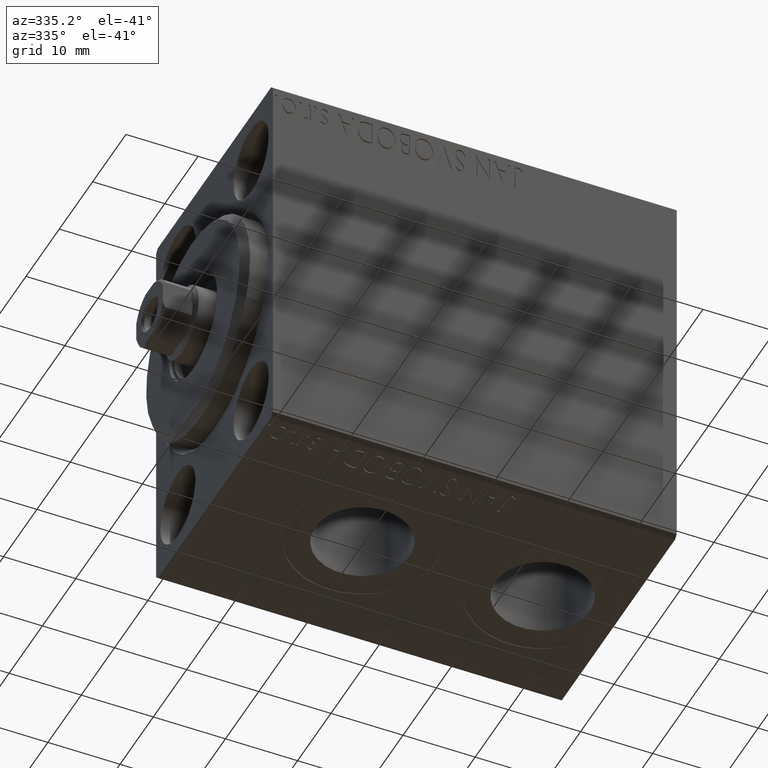
[diagram: clean part render]
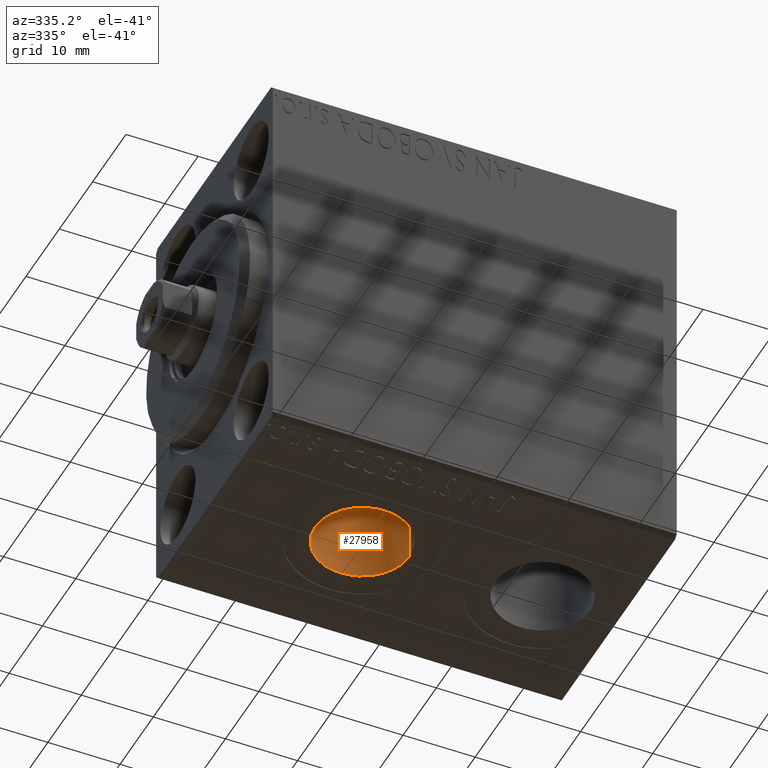
[diagram: same view with one face highlighted and labeled with its STEP entity id]
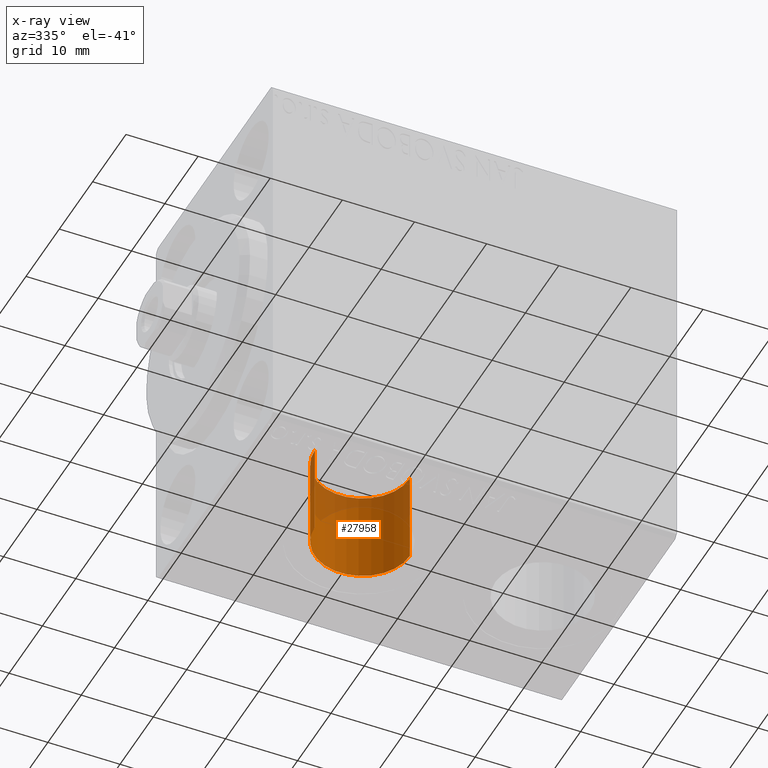
[diagram: x-ray of the same camera — body ghosted, the highlighted face saturated]
A machine part, auxiliary view. The second image highlights one B-rep face of the part: STEP entity #27958.
The next image is the same camera in x-ray: the body ghosted, the highlighted face saturated — about 26% of this face is hidden behind the body in this view.
In plain terms, the highlighted cylindrical surface (partial cylindrical patch) has radius 6.58 mm, axis along (-0, -0, -1).
Its self-contained STEP definition (entity closure, byte-faithful):
#293 = AXIS2_PLACEMENT_3D ( 'NONE', #1376, #31899, #14532 ) ;
#1169 = EDGE_CURVE ( 'NONE', #30750, #28812, #36252, .T. ) ;
#1376 = CARTESIAN_POINT ( 'NONE',  ( 20.50000000000000355, -2.726986211408916281E-15, -14.50000000000000355 ) ) ;
#2570 = VERTEX_POINT ( 'NONE', #6301 ) ;
#3170 = VECTOR ( 'NONE', #26231, 1000.000000000000000 ) ;
#4325 = CARTESIAN_POINT ( 'NONE',  ( 13.92000000000000171, -2.726986211408916281E-15, -27.40000000000000568 ) ) ;
#5148 = DIRECTION ( 'NONE',  ( 0.000000000000000000, 0.000000000000000000, -1.000000000000000000 ) ) ;
#6301 = CARTESIAN_POINT ( 'NONE',  ( 13.92000000000000171, -2.726986211408916281E-15, -14.50000000000000355 ) ) ;
#7382 = CIRCLE ( 'NONE', #293, 6.580000000000002736 ) ;
#9092 = CARTESIAN_POINT ( 'NONE',  ( 27.08000000000000540, -1.921168617569958028E-15, -27.40000000000000568 ) ) ;
#9183 = CARTESIAN_POINT ( 'NONE',  ( 20.50000000000000355, -2.726986211408916281E-15, -14.50000000000000355 ) ) ;
#13031 = CARTESIAN_POINT ( 'NONE',  ( 27.08000000000000540, -1.921168617569958028E-15, -14.50000000000000355 ) ) ;
#14532 = DIRECTION ( 'NONE',  ( -1.000000000000000000, 0.000000000000000000, 0.000000000000000000 ) ) ;
#15109 = ORIENTED_EDGE ( 'NONE', *, *, #23687, .T. ) ;
#16440 = ORIENTED_EDGE ( 'NONE', *, *, #1169, .T. ) ;
#17049 = AXIS2_PLACEMENT_3D ( 'NONE', #21870, #5148, #29643 ) ;
#17920 = EDGE_CURVE ( 'NONE', #25632, #28812, #30620, .T. ) ;
#21870 = CARTESIAN_POINT ( 'NONE',  ( 20.50000000000000355, -2.726986211408916281E-15, -27.40000000000000568 ) ) ;
#22492 = CARTESIAN_POINT ( 'NONE',  ( 27.08000000000000540, -1.921168617569958028E-15, -14.50000000000000355 ) ) ;
#23511 = ORIENTED_EDGE ( 'NONE', *, *, #17920, .F. ) ;
#23687 = EDGE_CURVE ( 'NONE', #2570, #30750, #43593, .T. ) ;
#25453 = DIRECTION ( 'NONE',  ( -1.000000000000000000, 0.000000000000000000, 0.000000000000000000 ) ) ;
#25632 = VERTEX_POINT ( 'NONE', #22492 ) ;
#26231 = DIRECTION ( 'NONE',  ( -0.000000000000000000, -0.000000000000000000, -1.000000000000000000 ) ) ;
#26835 = DIRECTION ( 'NONE',  ( -0.000000000000000000, -0.000000000000000000, -1.000000000000000000 ) ) ;
#27958 = ADVANCED_FACE ( 'NONE', ( #42376 ), #35938, .F. ) ;
#28369 = EDGE_LOOP ( 'NONE', ( #23511, #30418, #15109, #16440 ) ) ;
#28812 = VERTEX_POINT ( 'NONE', #9092 ) ;
#29298 = AXIS2_PLACEMENT_3D ( 'NONE', #9183, #32381, #25453 ) ;
#29643 = DIRECTION ( 'NONE',  ( -1.000000000000000000, 0.000000000000000000, 0.000000000000000000 ) ) ;
#30418 = ORIENTED_EDGE ( 'NONE', *, *, #34573, .F. ) ;
#30620 = LINE ( 'NONE', #13031, #42233 ) ;
#30750 = VERTEX_POINT ( 'NONE', #4325 ) ;
#31899 = DIRECTION ( 'NONE',  ( 0.000000000000000000, 0.000000000000000000, -1.000000000000000000 ) ) ;
#32381 = DIRECTION ( 'NONE',  ( -0.000000000000000000, -0.000000000000000000, -1.000000000000000000 ) ) ;
#34573 = EDGE_CURVE ( 'NONE', #2570, #25632, #7382, .T. ) ;
#35938 = CYLINDRICAL_SURFACE ( 'NONE', #29298, 6.580000000000002736 ) ;
#36252 = CIRCLE ( 'NONE', #17049, 6.580000000000002736 ) ;
#42233 = VECTOR ( 'NONE', #26835, 1000.000000000000000 ) ;
#42376 = FACE_OUTER_BOUND ( 'NONE', #28369, .T. ) ;
#43166 = CARTESIAN_POINT ( 'NONE',  ( 13.92000000000000171, -2.726986211408916281E-15, -14.50000000000000355 ) ) ;
#43593 = LINE ( 'NONE', #43166, #3170 ) ;